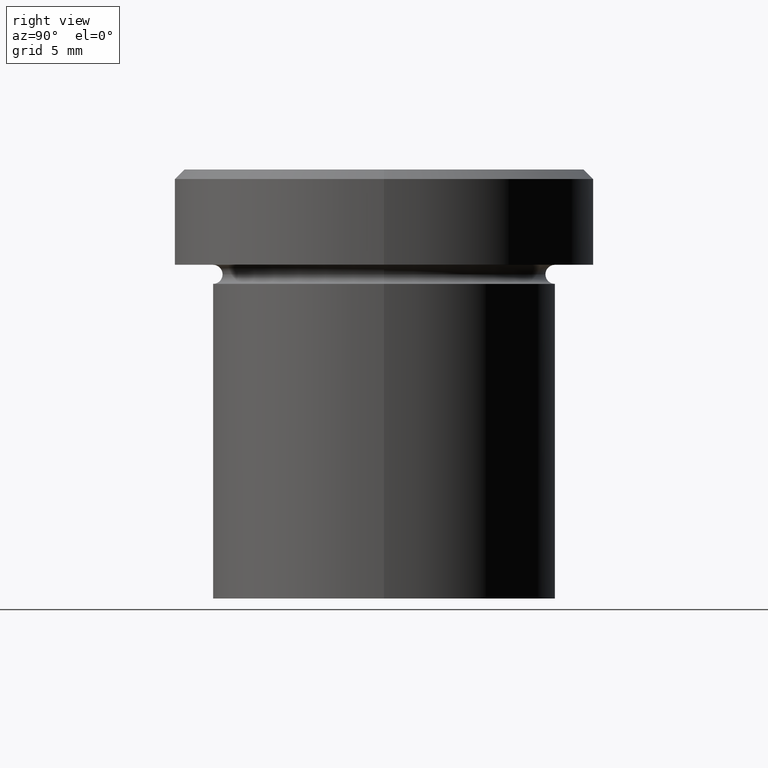
[diagram: clean part render]
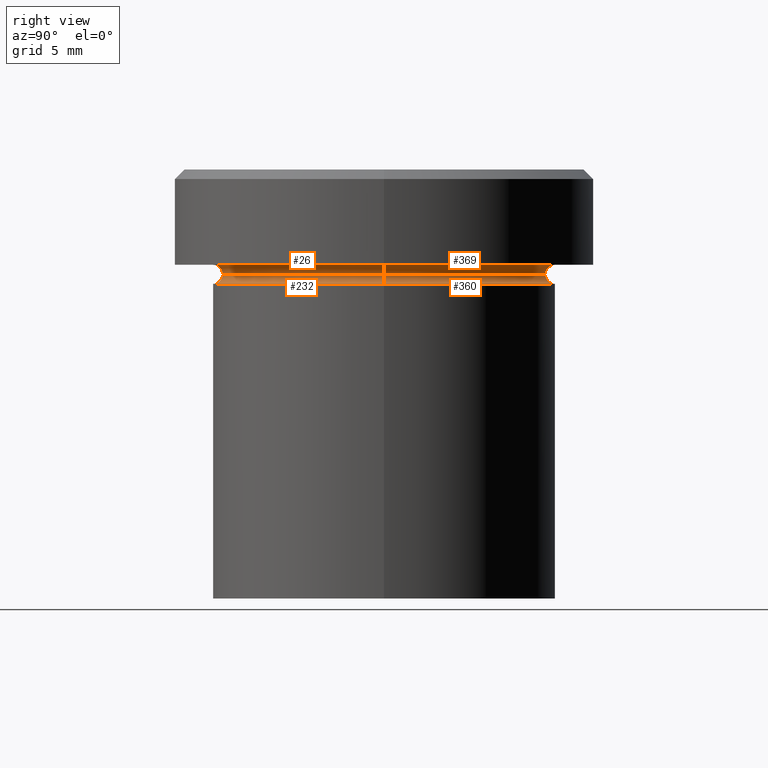
[diagram: same view with one multi-face feature highlighted, each face labeled with its STEP entity id]
A machine part, right view. The highlighted faces form ONE feature: a constant-radius fillet chain: 4 tangent blend faces with common blend radius 0.5 mm. The faces share edges in the B-rep.
Their STEP definitions:
[1] entity #26 (Torus):
#13 = EDGE_CURVE ( 'NONE', #233, #80, #265, .T. ) ;
#25 = CIRCLE ( 'NONE', #223, 9.000000000000000000 ) ;
#26 = ADVANCED_FACE ( 'NONE', ( #197 ), #406, .F. ) ;
#30 = CARTESIAN_POINT ( 'NONE',  ( -8.499999999999998224, 1.071565949253933927E-15, -5.500000000000000000 ) ) ;
#33 = DIRECTION ( 'NONE',  ( -1.000000000000000000, 0.000000000000000000, 0.000000000000000000 ) ) ;
#44 = DIRECTION ( 'NONE',  ( -0.000000000000000000, -0.000000000000000000, 1.000000000000000000 ) ) ;
#45 = EDGE_CURVE ( 'NONE', #80, #202, #141, .T. ) ;
#46 = CARTESIAN_POINT ( 'NONE',  ( -9.000000000000000000, 0.000000000000000000, -4.999999999999999112 ) ) ;
#48 = DIRECTION ( 'NONE',  ( 0.000000000000000000, 0.000000000000000000, -1.000000000000000000 ) ) ;
#63 = DIRECTION ( 'NONE',  ( 0.000000000000000000, 0.000000000000000000, -1.000000000000000000 ) ) ;
#77 = AXIS2_PLACEMENT_3D ( 'NONE', #96, #63, #33 ) ;
#80 = VERTEX_POINT ( 'NONE', #83 ) ;
#83 = CARTESIAN_POINT ( 'NONE',  ( 8.499999999999998224, 0.000000000000000000, -5.500000000000000000 ) ) ;
#85 = AXIS2_PLACEMENT_3D ( 'NONE', #163, #355, #48 ) ;
#88 = ORIENTED_EDGE ( 'NONE', *, *, #45, .T. ) ;
#93 = ORIENTED_EDGE ( 'NONE', *, *, #98, .F. ) ;
#96 = CARTESIAN_POINT ( 'NONE',  ( 0.000000000000000000, 0.000000000000000000, -5.500000000000000000 ) ) ;
#98 = EDGE_CURVE ( 'NONE', #153, #202, #25, .T. ) ;
#115 = EDGE_CURVE ( 'NONE', #233, #153, #263, .T. ) ;
#141 = CIRCLE ( 'NONE', #338, 0.5000000000000004441 ) ;
#146 = EDGE_LOOP ( 'NONE', ( #283, #88, #93, #149 ) ) ;
#149 = ORIENTED_EDGE ( 'NONE', *, *, #115, .F. ) ;
#153 = VERTEX_POINT ( 'NONE', #46 ) ;
#163 = CARTESIAN_POINT ( 'NONE',  ( -9.000000000000000000, 0.000000000000000000, -5.500000000000000000 ) ) ;
#196 = CARTESIAN_POINT ( 'NONE',  ( 0.000000000000000000, 0.000000000000000000, -5.000000000000000000 ) ) ;
#197 = FACE_OUTER_BOUND ( 'NONE', #146, .T. ) ;
#202 = VERTEX_POINT ( 'NONE', #229 ) ;
#203 = CARTESIAN_POINT ( 'NONE',  ( 0.000000000000000000, 0.000000000000000000, -5.500000000000000000 ) ) ;
#223 = AXIS2_PLACEMENT_3D ( 'NONE', #196, #44, #254 ) ;
#229 = CARTESIAN_POINT ( 'NONE',  ( 9.000000000000000000, 1.102182119232617714E-15, -4.999999999999999112 ) ) ;
#233 = VERTEX_POINT ( 'NONE', #30 ) ;
#254 = DIRECTION ( 'NONE',  ( -1.000000000000000000, 0.000000000000000000, 0.000000000000000000 ) ) ;
#263 = CIRCLE ( 'NONE', #85, 0.5000000000000004441 ) ;
#265 = CIRCLE ( 'NONE', #402, 8.499999999999998224 ) ;
#282 = DIRECTION ( 'NONE',  ( -1.224646799147353207E-16, 1.000000000000000000, 0.000000000000000000 ) ) ;
#283 = ORIENTED_EDGE ( 'NONE', *, *, #13, .T. ) ;
#306 = CARTESIAN_POINT ( 'NONE',  ( 9.000000000000000000, 1.102182119232617714E-15, -5.500000000000000000 ) ) ;
#325 = DIRECTION ( 'NONE',  ( 1.000000000000000000, 0.000000000000000000, 0.000000000000000000 ) ) ;
#328 = DIRECTION ( 'NONE',  ( -0.000000000000000000, -0.000000000000000000, 1.000000000000000000 ) ) ;
#338 = AXIS2_PLACEMENT_3D ( 'NONE', #306, #282, #384 ) ;
#355 = DIRECTION ( 'NONE',  ( -0.000000000000000000, -1.000000000000000000, -0.000000000000000000 ) ) ;
#384 = DIRECTION ( 'NONE',  ( -1.000000000000000000, -1.224646799147353454E-16, 0.000000000000000000 ) ) ;
#402 = AXIS2_PLACEMENT_3D ( 'NONE', #203, #328, #325 ) ;
#406 = TOROIDAL_SURFACE ( 'NONE', #77, 9.000000000000000000, 0.5000000000000000000 ) ;
[2] entity #369 (Torus):
#9 = ORIENTED_EDGE ( 'NONE', *, *, #115, .T. ) ;
#30 = CARTESIAN_POINT ( 'NONE',  ( -8.499999999999998224, 1.071565949253933927E-15, -5.500000000000000000 ) ) ;
#40 = DIRECTION ( 'NONE',  ( 1.000000000000000000, 0.000000000000000000, 0.000000000000000000 ) ) ;
#45 = EDGE_CURVE ( 'NONE', #80, #202, #141, .T. ) ;
#46 = CARTESIAN_POINT ( 'NONE',  ( -9.000000000000000000, 0.000000000000000000, -4.999999999999999112 ) ) ;
#48 = DIRECTION ( 'NONE',  ( 0.000000000000000000, 0.000000000000000000, -1.000000000000000000 ) ) ;
#62 = CIRCLE ( 'NONE', #377, 8.499999999999998224 ) ;
#80 = VERTEX_POINT ( 'NONE', #83 ) ;
#83 = CARTESIAN_POINT ( 'NONE',  ( 8.499999999999998224, 0.000000000000000000, -5.500000000000000000 ) ) ;
#85 = AXIS2_PLACEMENT_3D ( 'NONE', #163, #355, #48 ) ;
#94 = EDGE_CURVE ( 'NONE', #80, #233, #62, .T. ) ;
#111 = DIRECTION ( 'NONE',  ( -0.000000000000000000, -0.000000000000000000, 1.000000000000000000 ) ) ;
#115 = EDGE_CURVE ( 'NONE', #233, #153, #263, .T. ) ;
#119 = ORIENTED_EDGE ( 'NONE', *, *, #94, .T. ) ;
#120 = CARTESIAN_POINT ( 'NONE',  ( 0.000000000000000000, 0.000000000000000000, -5.500000000000000000 ) ) ;
#128 = TOROIDAL_SURFACE ( 'NONE', #264, 9.000000000000000000, 0.5000000000000000000 ) ;
#131 = DIRECTION ( 'NONE',  ( -1.000000000000000000, 0.000000000000000000, 0.000000000000000000 ) ) ;
#141 = CIRCLE ( 'NONE', #338, 0.5000000000000004441 ) ;
#153 = VERTEX_POINT ( 'NONE', #46 ) ;
#161 = DIRECTION ( 'NONE',  ( -0.000000000000000000, -0.000000000000000000, 1.000000000000000000 ) ) ;
#163 = CARTESIAN_POINT ( 'NONE',  ( -9.000000000000000000, 0.000000000000000000, -5.500000000000000000 ) ) ;
#171 = DIRECTION ( 'NONE',  ( -1.000000000000000000, 0.000000000000000000, 0.000000000000000000 ) ) ;
#198 = ORIENTED_EDGE ( 'NONE', *, *, #45, .F. ) ;
#202 = VERTEX_POINT ( 'NONE', #229 ) ;
#208 = EDGE_LOOP ( 'NONE', ( #198, #119, #9, #315 ) ) ;
#229 = CARTESIAN_POINT ( 'NONE',  ( 9.000000000000000000, 1.102182119232617714E-15, -4.999999999999999112 ) ) ;
#233 = VERTEX_POINT ( 'NONE', #30 ) ;
#242 = AXIS2_PLACEMENT_3D ( 'NONE', #245, #111, #131 ) ;
#245 = CARTESIAN_POINT ( 'NONE',  ( 0.000000000000000000, 0.000000000000000000, -5.000000000000000000 ) ) ;
#246 = CARTESIAN_POINT ( 'NONE',  ( 0.000000000000000000, 0.000000000000000000, -5.500000000000000000 ) ) ;
#263 = CIRCLE ( 'NONE', #85, 0.5000000000000004441 ) ;
#264 = AXIS2_PLACEMENT_3D ( 'NONE', #120, #371, #171 ) ;
#282 = DIRECTION ( 'NONE',  ( -1.224646799147353207E-16, 1.000000000000000000, 0.000000000000000000 ) ) ;
#303 = EDGE_CURVE ( 'NONE', #202, #153, #348, .T. ) ;
#306 = CARTESIAN_POINT ( 'NONE',  ( 9.000000000000000000, 1.102182119232617714E-15, -5.500000000000000000 ) ) ;
#315 = ORIENTED_EDGE ( 'NONE', *, *, #303, .F. ) ;
#338 = AXIS2_PLACEMENT_3D ( 'NONE', #306, #282, #384 ) ;
#348 = CIRCLE ( 'NONE', #242, 9.000000000000000000 ) ;
#355 = DIRECTION ( 'NONE',  ( -0.000000000000000000, -1.000000000000000000, -0.000000000000000000 ) ) ;
#363 = FACE_OUTER_BOUND ( 'NONE', #208, .T. ) ;
#369 = ADVANCED_FACE ( 'NONE', ( #363 ), #128, .F. ) ;
#371 = DIRECTION ( 'NONE',  ( 0.000000000000000000, 0.000000000000000000, -1.000000000000000000 ) ) ;
#377 = AXIS2_PLACEMENT_3D ( 'NONE', #246, #161, #40 ) ;
#384 = DIRECTION ( 'NONE',  ( -1.000000000000000000, -1.224646799147353454E-16, 0.000000000000000000 ) ) ;
[3] entity #360 (Torus):
#4 = VERTEX_POINT ( 'NONE', #231 ) ;
#21 = DIRECTION ( 'NONE',  ( 1.000000000000000000, 0.000000000000000000, 0.000000000000000000 ) ) ;
#30 = CARTESIAN_POINT ( 'NONE',  ( -8.499999999999998224, 1.071565949253933927E-15, -5.500000000000000000 ) ) ;
#31 = ORIENTED_EDGE ( 'NONE', *, *, #94, .F. ) ;
#34 = CARTESIAN_POINT ( 'NONE',  ( -9.000000000000000000, 1.102182119232617714E-15, -5.500000000000000000 ) ) ;
#35 = AXIS2_PLACEMENT_3D ( 'NONE', #34, #334, #159 ) ;
#40 = DIRECTION ( 'NONE',  ( 1.000000000000000000, 0.000000000000000000, 0.000000000000000000 ) ) ;
#53 = CIRCLE ( 'NONE', #144, 0.5000000000000004441 ) ;
#62 = CIRCLE ( 'NONE', #377, 8.499999999999998224 ) ;
#69 = AXIS2_PLACEMENT_3D ( 'NONE', #296, #173, #150 ) ;
#75 = AXIS2_PLACEMENT_3D ( 'NONE', #381, #295, #21 ) ;
#78 = CARTESIAN_POINT ( 'NONE',  ( 9.000000000000000000, 0.000000000000000000, -5.500000000000000000 ) ) ;
#80 = VERTEX_POINT ( 'NONE', #83 ) ;
#83 = CARTESIAN_POINT ( 'NONE',  ( 8.499999999999998224, 0.000000000000000000, -5.500000000000000000 ) ) ;
#94 = EDGE_CURVE ( 'NONE', #80, #233, #62, .T. ) ;
#144 = AXIS2_PLACEMENT_3D ( 'NONE', #78, #398, #258 ) ;
#150 = DIRECTION ( 'NONE',  ( 1.000000000000000000, 0.000000000000000000, 0.000000000000000000 ) ) ;
#159 = DIRECTION ( 'NONE',  ( -1.000000000000000000, 1.224646799147353454E-16, 0.000000000000000000 ) ) ;
#161 = DIRECTION ( 'NONE',  ( -0.000000000000000000, -0.000000000000000000, 1.000000000000000000 ) ) ;
#166 = FACE_OUTER_BOUND ( 'NONE', #373, .T. ) ;
#173 = DIRECTION ( 'NONE',  ( -0.000000000000000000, -0.000000000000000000, 1.000000000000000000 ) ) ;
#221 = CIRCLE ( 'NONE', #35, 0.5000000000000004441 ) ;
#231 = CARTESIAN_POINT ( 'NONE',  ( 9.000000000000000000, 0.000000000000000000, -6.000000000000000000 ) ) ;
#233 = VERTEX_POINT ( 'NONE', #30 ) ;
#246 = CARTESIAN_POINT ( 'NONE',  ( 0.000000000000000000, 0.000000000000000000, -5.500000000000000000 ) ) ;
#253 = CARTESIAN_POINT ( 'NONE',  ( -9.000000000000000000, 1.102182119232617714E-15, -6.000000000000000000 ) ) ;
#258 = DIRECTION ( 'NONE',  ( 0.000000000000000000, 0.000000000000000000, -1.000000000000000000 ) ) ;
#275 = VERTEX_POINT ( 'NONE', #253 ) ;
#295 = DIRECTION ( 'NONE',  ( -0.000000000000000000, -0.000000000000000000, 1.000000000000000000 ) ) ;
#296 = CARTESIAN_POINT ( 'NONE',  ( 0.000000000000000000, 0.000000000000000000, -5.500000000000000000 ) ) ;
#327 = ORIENTED_EDGE ( 'NONE', *, *, #404, .F. ) ;
#333 = CIRCLE ( 'NONE', #75, 9.000000000000000000 ) ;
#334 = DIRECTION ( 'NONE',  ( 1.224646799147353207E-16, 1.000000000000000000, 0.000000000000000000 ) ) ;
#335 = EDGE_CURVE ( 'NONE', #80, #4, #53, .T. ) ;
#360 = ADVANCED_FACE ( 'NONE', ( #166 ), #405, .F. ) ;
#373 = EDGE_LOOP ( 'NONE', ( #327, #31, #403, #380 ) ) ;
#377 = AXIS2_PLACEMENT_3D ( 'NONE', #246, #161, #40 ) ;
#380 = ORIENTED_EDGE ( 'NONE', *, *, #396, .T. ) ;
#381 = CARTESIAN_POINT ( 'NONE',  ( 0.000000000000000000, 0.000000000000000000, -6.000000000000000000 ) ) ;
#396 = EDGE_CURVE ( 'NONE', #4, #275, #333, .T. ) ;
#398 = DIRECTION ( 'NONE',  ( 0.000000000000000000, -1.000000000000000000, 0.000000000000000000 ) ) ;
#403 = ORIENTED_EDGE ( 'NONE', *, *, #335, .T. ) ;
#404 = EDGE_CURVE ( 'NONE', #233, #275, #221, .T. ) ;
#405 = TOROIDAL_SURFACE ( 'NONE', #69, 9.000000000000000000, 0.5000000000000000000 ) ;
[4] entity #232 (Torus):
#4 = VERTEX_POINT ( 'NONE', #231 ) ;
#10 = DIRECTION ( 'NONE',  ( 1.000000000000000000, 0.000000000000000000, 0.000000000000000000 ) ) ;
#13 = EDGE_CURVE ( 'NONE', #233, #80, #265, .T. ) ;
#30 = CARTESIAN_POINT ( 'NONE',  ( -8.499999999999998224, 1.071565949253933927E-15, -5.500000000000000000 ) ) ;
#34 = CARTESIAN_POINT ( 'NONE',  ( -9.000000000000000000, 1.102182119232617714E-15, -5.500000000000000000 ) ) ;
#35 = AXIS2_PLACEMENT_3D ( 'NONE', #34, #334, #159 ) ;
#53 = CIRCLE ( 'NONE', #144, 0.5000000000000004441 ) ;
#78 = CARTESIAN_POINT ( 'NONE',  ( 9.000000000000000000, 0.000000000000000000, -5.500000000000000000 ) ) ;
#80 = VERTEX_POINT ( 'NONE', #83 ) ;
#83 = CARTESIAN_POINT ( 'NONE',  ( 8.499999999999998224, 0.000000000000000000, -5.500000000000000000 ) ) ;
#108 = AXIS2_PLACEMENT_3D ( 'NONE', #385, #250, #10 ) ;
#122 = ORIENTED_EDGE ( 'NONE', *, *, #281, .T. ) ;
#127 = AXIS2_PLACEMENT_3D ( 'NONE', #204, #332, #209 ) ;
#144 = AXIS2_PLACEMENT_3D ( 'NONE', #78, #398, #258 ) ;
#159 = DIRECTION ( 'NONE',  ( -1.000000000000000000, 1.224646799147353454E-16, 0.000000000000000000 ) ) ;
#176 = EDGE_LOOP ( 'NONE', ( #251, #323, #122, #365 ) ) ;
#192 = TOROIDAL_SURFACE ( 'NONE', #127, 9.000000000000000000, 0.5000000000000000000 ) ;
#203 = CARTESIAN_POINT ( 'NONE',  ( 0.000000000000000000, 0.000000000000000000, -5.500000000000000000 ) ) ;
#204 = CARTESIAN_POINT ( 'NONE',  ( 0.000000000000000000, 0.000000000000000000, -5.500000000000000000 ) ) ;
#206 = FACE_OUTER_BOUND ( 'NONE', #176, .T. ) ;
#209 = DIRECTION ( 'NONE',  ( 1.000000000000000000, 0.000000000000000000, 0.000000000000000000 ) ) ;
#221 = CIRCLE ( 'NONE', #35, 0.5000000000000004441 ) ;
#231 = CARTESIAN_POINT ( 'NONE',  ( 9.000000000000000000, 0.000000000000000000, -6.000000000000000000 ) ) ;
#232 = ADVANCED_FACE ( 'NONE', ( #206 ), #192, .F. ) ;
#233 = VERTEX_POINT ( 'NONE', #30 ) ;
#250 = DIRECTION ( 'NONE',  ( -0.000000000000000000, -0.000000000000000000, 1.000000000000000000 ) ) ;
#251 = ORIENTED_EDGE ( 'NONE', *, *, #13, .F. ) ;
#253 = CARTESIAN_POINT ( 'NONE',  ( -9.000000000000000000, 1.102182119232617714E-15, -6.000000000000000000 ) ) ;
#258 = DIRECTION ( 'NONE',  ( 0.000000000000000000, 0.000000000000000000, -1.000000000000000000 ) ) ;
#265 = CIRCLE ( 'NONE', #402, 8.499999999999998224 ) ;
#275 = VERTEX_POINT ( 'NONE', #253 ) ;
#279 = CIRCLE ( 'NONE', #108, 9.000000000000000000 ) ;
#281 = EDGE_CURVE ( 'NONE', #275, #4, #279, .T. ) ;
#323 = ORIENTED_EDGE ( 'NONE', *, *, #404, .T. ) ;
#325 = DIRECTION ( 'NONE',  ( 1.000000000000000000, 0.000000000000000000, 0.000000000000000000 ) ) ;
#328 = DIRECTION ( 'NONE',  ( -0.000000000000000000, -0.000000000000000000, 1.000000000000000000 ) ) ;
#332 = DIRECTION ( 'NONE',  ( -0.000000000000000000, -0.000000000000000000, 1.000000000000000000 ) ) ;
#334 = DIRECTION ( 'NONE',  ( 1.224646799147353207E-16, 1.000000000000000000, 0.000000000000000000 ) ) ;
#335 = EDGE_CURVE ( 'NONE', #80, #4, #53, .T. ) ;
#365 = ORIENTED_EDGE ( 'NONE', *, *, #335, .F. ) ;
#385 = CARTESIAN_POINT ( 'NONE',  ( 0.000000000000000000, 0.000000000000000000, -6.000000000000000000 ) ) ;
#398 = DIRECTION ( 'NONE',  ( 0.000000000000000000, -1.000000000000000000, 0.000000000000000000 ) ) ;
#402 = AXIS2_PLACEMENT_3D ( 'NONE', #203, #328, #325 ) ;
#404 = EDGE_CURVE ( 'NONE', #233, #275, #221, .T. ) ;